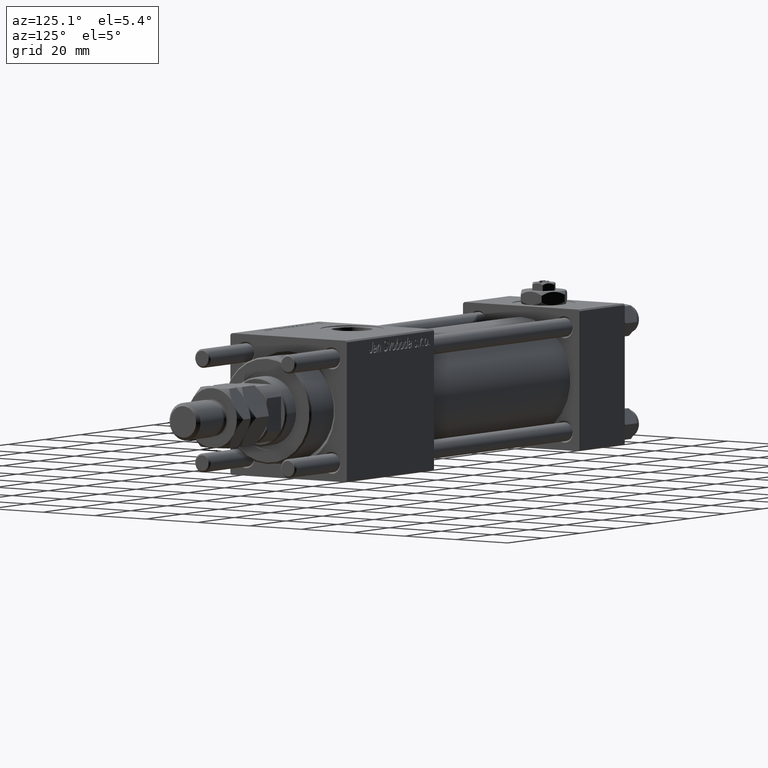
[diagram: clean part render]
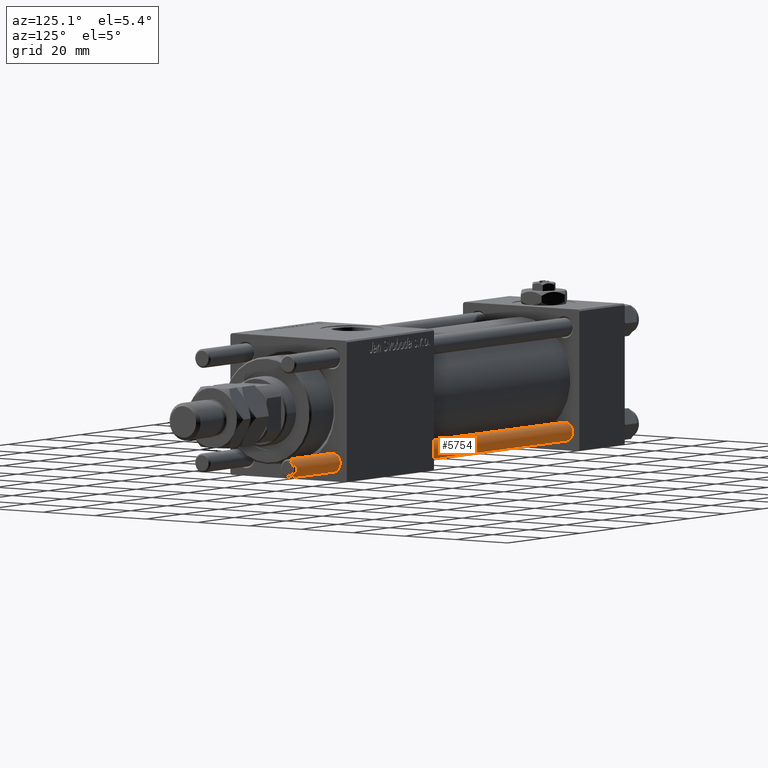
[diagram: same view with one face highlighted and labeled with its STEP entity id]
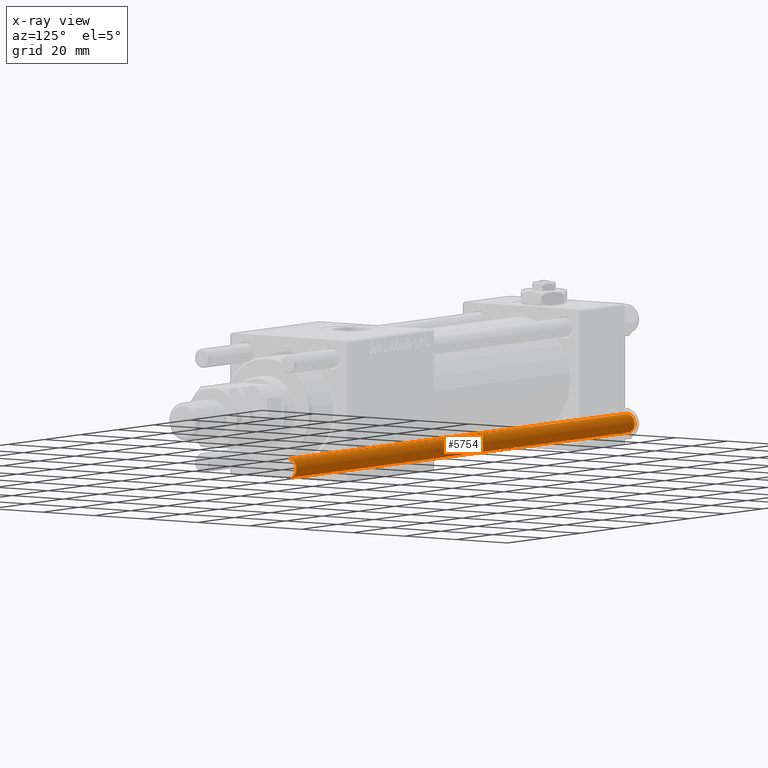
[diagram: x-ray of the same camera — body ghosted, the highlighted face saturated]
A machine part, auxiliary view. The second image highlights one B-rep face of the part: STEP entity #5754.
The next image is the same camera in x-ray: the body ghosted, the highlighted face saturated — about 0% of this face is hidden behind the body in this view.
In plain terms, the highlighted cylindrical surface (edge-blend (fillet) strip) has radius 3 mm, axis along (-1, -0, 0).
Its self-contained STEP definition (entity closure, byte-faithful):
#1795 = CARTESIAN_POINT ( 'NONE',  ( 0.000000000000000000, 0.000000000000000000, 187.0000000000000000 ) ) ;
#2447 = VERTEX_POINT ( 'NONE', #56661 ) ;
#3929 = CARTESIAN_POINT ( 'NONE',  ( 0.000000000000000000, 0.000000000000000000, 0.5000000000000281997 ) ) ;
#4822 = CARTESIAN_POINT ( 'NONE',  ( 3.000000000000000444, 3.673940397442060361E-16, 187.0000000000000000 ) ) ;
#5043 = EDGE_LOOP ( 'NONE', ( #5187, #56237, #8891, #45592 ) ) ;
#5187 = ORIENTED_EDGE ( 'NONE', *, *, #22728, .T. ) ;
#5754 = ADVANCED_FACE ( 'NONE', ( #58329 ), #53148, .T. ) ;
#6777 = VECTOR ( 'NONE', #22182, 1000.000000000000000 ) ;
#7906 = CARTESIAN_POINT ( 'NONE',  ( -3.000000000000000444, 0.000000000000000000, 187.0000000000000000 ) ) ;
#8005 = AXIS2_PLACEMENT_3D ( 'NONE', #57959, #21176, #16614 ) ;
#8891 = ORIENTED_EDGE ( 'NONE', *, *, #52123, .T. ) ;
#11922 = DIRECTION ( 'NONE',  ( -0.000000000000000000, -0.000000000000000000, 1.000000000000000000 ) ) ;
#13797 = VERTEX_POINT ( 'NONE', #27803 ) ;
#16614 = DIRECTION ( 'NONE',  ( 1.000000000000000000, 0.000000000000000000, 0.000000000000000000 ) ) ;
#16708 = VERTEX_POINT ( 'NONE', #40096 ) ;
#20042 = DIRECTION ( 'NONE',  ( -0.000000000000000000, -0.000000000000000000, -1.000000000000000000 ) ) ;
#20156 = AXIS2_PLACEMENT_3D ( 'NONE', #1795, #20042, #52546 ) ;
#21176 = DIRECTION ( 'NONE',  ( 0.000000000000000000, 0.000000000000000000, -1.000000000000000000 ) ) ;
#21903 = EDGE_CURVE ( 'NONE', #2447, #32452, #22465, .T. ) ;
#22182 = DIRECTION ( 'NONE',  ( -0.000000000000000000, -0.000000000000000000, -1.000000000000000000 ) ) ;
#22465 = LINE ( 'NONE', #4822, #40951 ) ;
#22534 = CIRCLE ( 'NONE', #8005, 3.000000000000000444 ) ;
#22728 = EDGE_CURVE ( 'NONE', #13797, #2447, #22534, .T. ) ;
#27803 = CARTESIAN_POINT ( 'NONE',  ( -3.000000000000000444, 0.000000000000000000, 186.5000000000000568 ) ) ;
#30213 = EDGE_CURVE ( 'NONE', #13797, #16708, #49537, .T. ) ;
#32452 = VERTEX_POINT ( 'NONE', #56676 ) ;
#37477 = AXIS2_PLACEMENT_3D ( 'NONE', #3929, #11922, #57219 ) ;
#40096 = CARTESIAN_POINT ( 'NONE',  ( -3.000000000000000444, 0.000000000000000000, 0.5000000000000281997 ) ) ;
#40951 = VECTOR ( 'NONE', #40979, 1000.000000000000000 ) ;
#40979 = DIRECTION ( 'NONE',  ( -0.000000000000000000, -0.000000000000000000, -1.000000000000000000 ) ) ;
#44239 = CIRCLE ( 'NONE', #37477, 3.000000000000000444 ) ;
#45592 = ORIENTED_EDGE ( 'NONE', *, *, #30213, .F. ) ;
#49537 = LINE ( 'NONE', #7906, #6777 ) ;
#52123 = EDGE_CURVE ( 'NONE', #32452, #16708, #44239, .T. ) ;
#52546 = DIRECTION ( 'NONE',  ( -1.000000000000000000, 0.000000000000000000, 0.000000000000000000 ) ) ;
#53148 = CYLINDRICAL_SURFACE ( 'NONE', #20156, 3.000000000000000444 ) ;
#56237 = ORIENTED_EDGE ( 'NONE', *, *, #21903, .T. ) ;
#56661 = CARTESIAN_POINT ( 'NONE',  ( 3.000000000000000444, 3.673940397442060361E-16, 186.5000000000000568 ) ) ;
#56676 = CARTESIAN_POINT ( 'NONE',  ( 3.000000000000000444, 3.673940397442060361E-16, 0.5000000000000281997 ) ) ;
#57219 = DIRECTION ( 'NONE',  ( 1.000000000000000000, 0.000000000000000000, 0.000000000000000000 ) ) ;
#57959 = CARTESIAN_POINT ( 'NONE',  ( 0.000000000000000000, 0.000000000000000000, 186.5000000000000568 ) ) ;
#58329 = FACE_OUTER_BOUND ( 'NONE', #5043, .T. ) ;